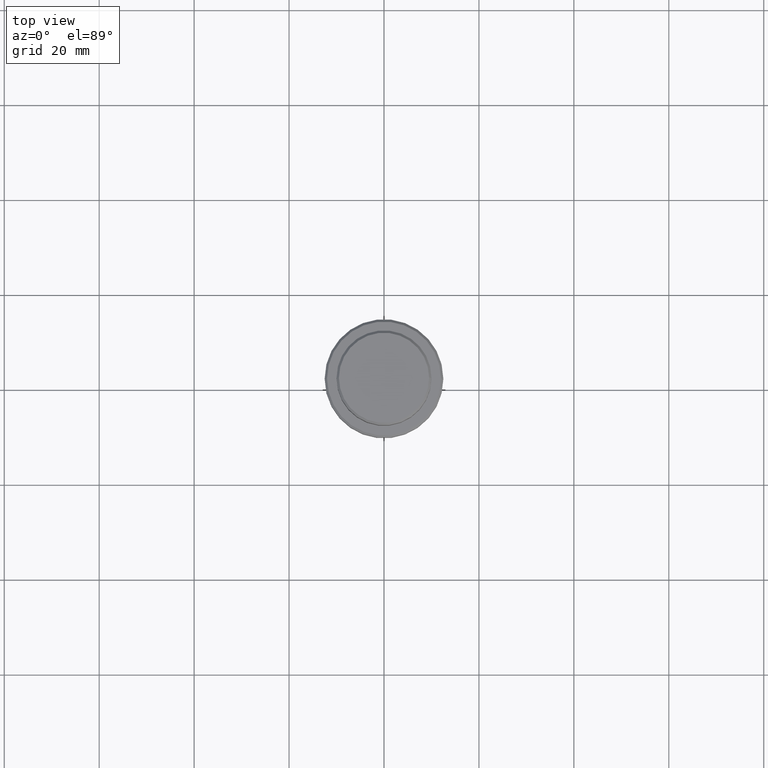
[diagram: clean part render]
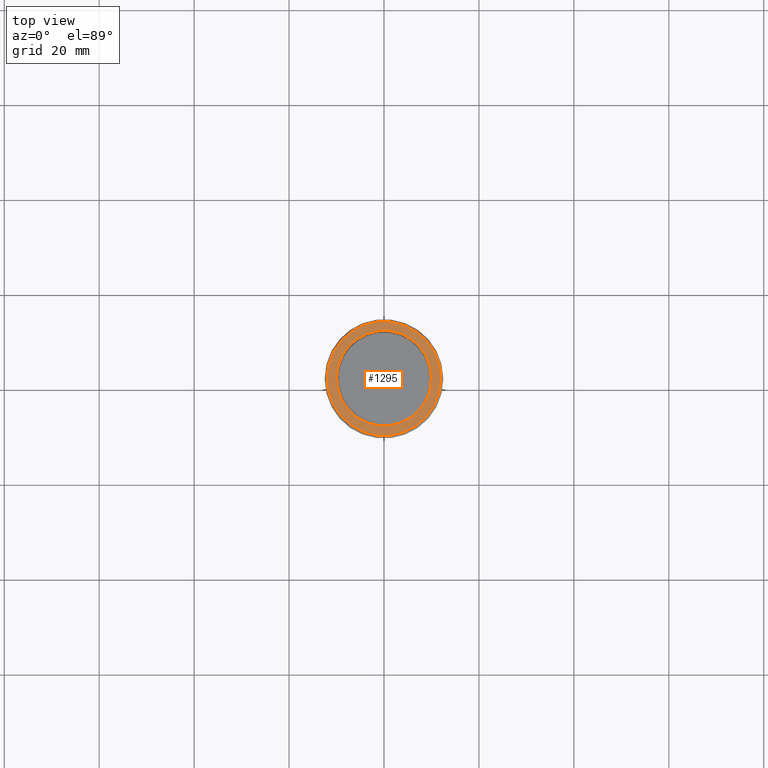
[diagram: same view with one face highlighted and labeled with its STEP entity id]
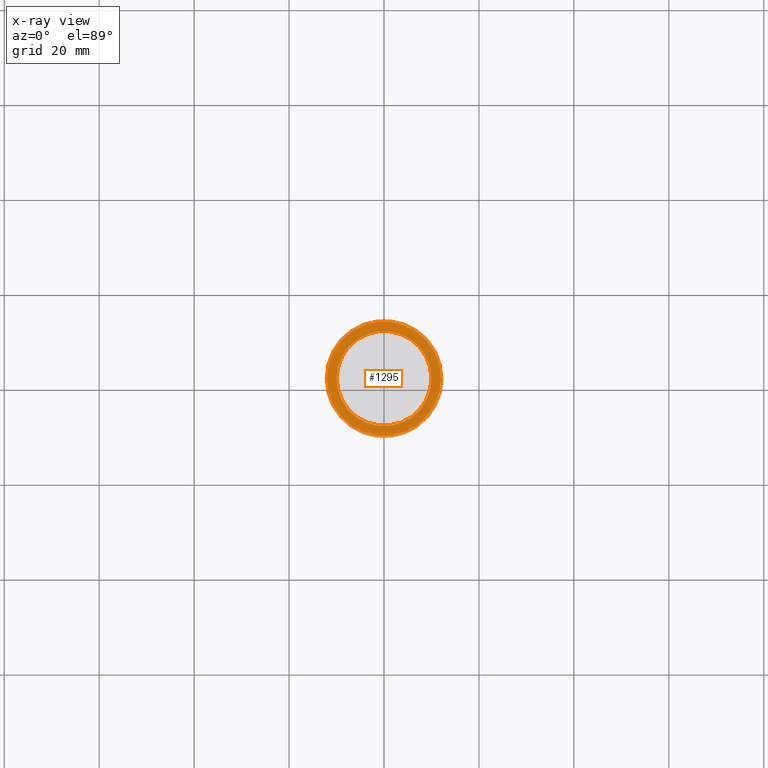
[diagram: x-ray of the same camera — body ghosted, the highlighted face saturated]
A machine part, top view. The second image highlights one B-rep face of the part: STEP entity #1295.
The next image is the same camera in x-ray: the body ghosted, the highlighted face saturated — about 0% of this face is hidden behind the body in this view.
In plain terms, the highlighted planar face has unit normal (0, -0, 1).
Its self-contained STEP definition (entity closure, byte-faithful):
#13 = VERTEX_POINT ( 'NONE', #894 ) ;
#49 = DIRECTION ( 'NONE',  ( -0.000000000000000000, -0.000000000000000000, 1.000000000000000000 ) ) ;
#55 = AXIS2_PLACEMENT_3D ( 'NONE', #138, #776, #1321 ) ;
#108 = VERTEX_POINT ( 'NONE', #937 ) ;
#134 = FACE_OUTER_BOUND ( 'NONE', #1005, .T. ) ;
#138 = CARTESIAN_POINT ( 'NONE',  ( 0.000000000000000000, 0.000000000000000000, -9.000000000000001776 ) ) ;
#182 = AXIS2_PLACEMENT_3D ( 'NONE', #655, #244, #229 ) ;
#198 = DIRECTION ( 'NONE',  ( 1.000000000000000000, 0.000000000000000000, 0.000000000000000000 ) ) ;
#229 = DIRECTION ( 'NONE',  ( 1.000000000000000000, 0.000000000000000000, 0.000000000000000000 ) ) ;
#244 = DIRECTION ( 'NONE',  ( 0.000000000000000000, -0.000000000000000000, 1.000000000000000000 ) ) ;
#280 = EDGE_CURVE ( 'NONE', #108, #13, #1160, .T. ) ;
#318 = PLANE ( 'NONE',  #182 ) ;
#325 = DIRECTION ( 'NONE',  ( 1.000000000000000000, 0.000000000000000000, 0.000000000000000000 ) ) ;
#339 = FACE_BOUND ( 'NONE', #694, .T. ) ;
#342 = CIRCLE ( 'NONE', #1311, 12.00000000000006573 ) ;
#351 = EDGE_CURVE ( 'NONE', #405, #531, #438, .T. ) ;
#376 = DIRECTION ( 'NONE',  ( 1.000000000000000000, 0.000000000000000000, 0.000000000000000000 ) ) ;
#405 = VERTEX_POINT ( 'NONE', #1080 ) ;
#438 = CIRCLE ( 'NONE', #1243, 12.00000000000006573 ) ;
#531 = VERTEX_POINT ( 'NONE', #1022 ) ;
#570 = ORIENTED_EDGE ( 'NONE', *, *, #351, .T. ) ;
#655 = CARTESIAN_POINT ( 'NONE',  ( 0.000000000000000000, 9.499999999999994671, -9.000000000000001776 ) ) ;
#673 = CIRCLE ( 'NONE', #55, 9.999999999999994671 ) ;
#680 = EDGE_CURVE ( 'NONE', #531, #405, #342, .T. ) ;
#694 = EDGE_LOOP ( 'NONE', ( #836, #758 ) ) ;
#750 = DIRECTION ( 'NONE',  ( 0.000000000000000000, 0.000000000000000000, -1.000000000000000000 ) ) ;
#755 = DIRECTION ( 'NONE',  ( -0.000000000000000000, -0.000000000000000000, 1.000000000000000000 ) ) ;
#758 = ORIENTED_EDGE ( 'NONE', *, *, #860, .T. ) ;
#766 = CARTESIAN_POINT ( 'NONE',  ( 0.000000000000000000, 0.000000000000000000, -9.000000000000001776 ) ) ;
#776 = DIRECTION ( 'NONE',  ( 0.000000000000000000, 0.000000000000000000, -1.000000000000000000 ) ) ;
#836 = ORIENTED_EDGE ( 'NONE', *, *, #280, .T. ) ;
#860 = EDGE_CURVE ( 'NONE', #13, #108, #673, .T. ) ;
#876 = CARTESIAN_POINT ( 'NONE',  ( 0.000000000000000000, 0.000000000000000000, -9.000000000000001776 ) ) ;
#894 = CARTESIAN_POINT ( 'NONE',  ( -9.999999999999994671, 1.224646799147352665E-15, -9.000000000000001776 ) ) ;
#937 = CARTESIAN_POINT ( 'NONE',  ( 9.999999999999994671, 0.000000000000000000, -9.000000000000001776 ) ) ;
#948 = ORIENTED_EDGE ( 'NONE', *, *, #680, .T. ) ;
#1005 = EDGE_LOOP ( 'NONE', ( #948, #570 ) ) ;
#1022 = CARTESIAN_POINT ( 'NONE',  ( -12.00000000000006573, 0.000000000000000000, -9.000000000000001776 ) ) ;
#1080 = CARTESIAN_POINT ( 'NONE',  ( 12.00000000000006573, 1.500192328955511679E-15, -9.000000000000001776 ) ) ;
#1130 = AXIS2_PLACEMENT_3D ( 'NONE', #876, #750, #198 ) ;
#1160 = CIRCLE ( 'NONE', #1130, 9.999999999999994671 ) ;
#1243 = AXIS2_PLACEMENT_3D ( 'NONE', #766, #755, #325 ) ;
#1295 = ADVANCED_FACE ( 'NONE', ( #134, #339 ), #318, .T. ) ;
#1300 = CARTESIAN_POINT ( 'NONE',  ( 0.000000000000000000, 0.000000000000000000, -9.000000000000001776 ) ) ;
#1311 = AXIS2_PLACEMENT_3D ( 'NONE', #1300, #49, #376 ) ;
#1321 = DIRECTION ( 'NONE',  ( 1.000000000000000000, 0.000000000000000000, 0.000000000000000000 ) ) ;